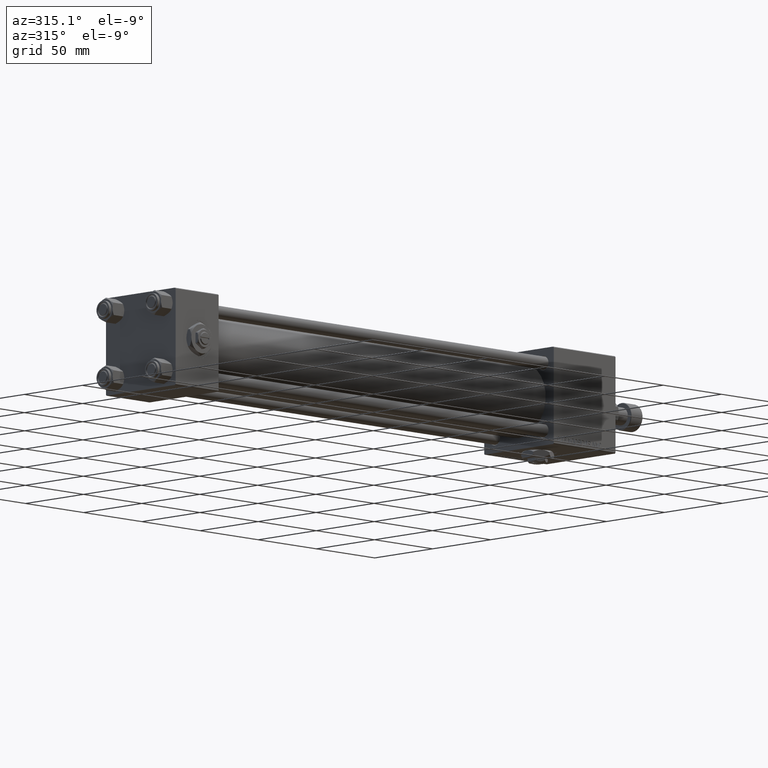
[diagram: clean part render]
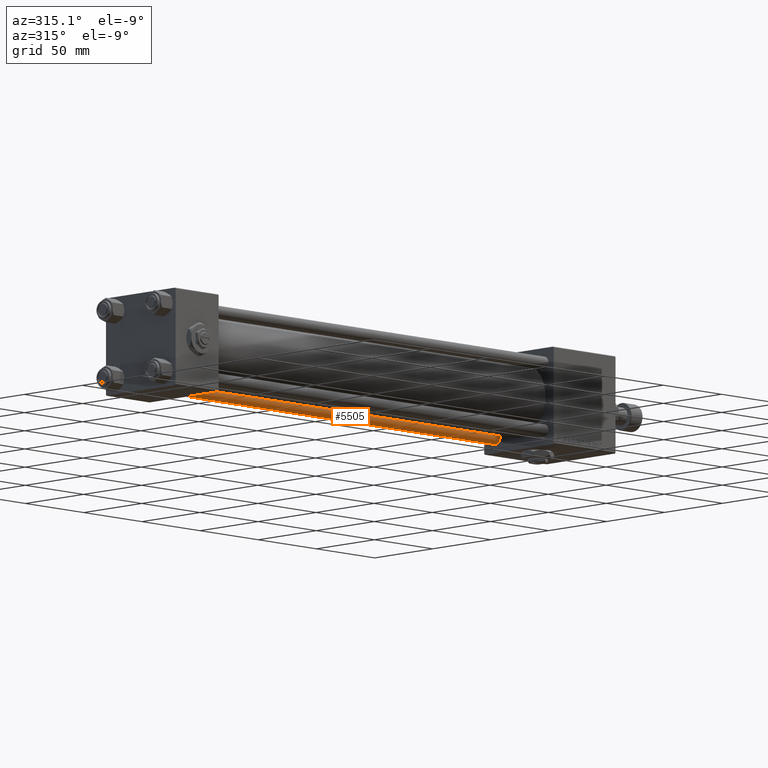
[diagram: same view with one face highlighted and labeled with its STEP entity id]
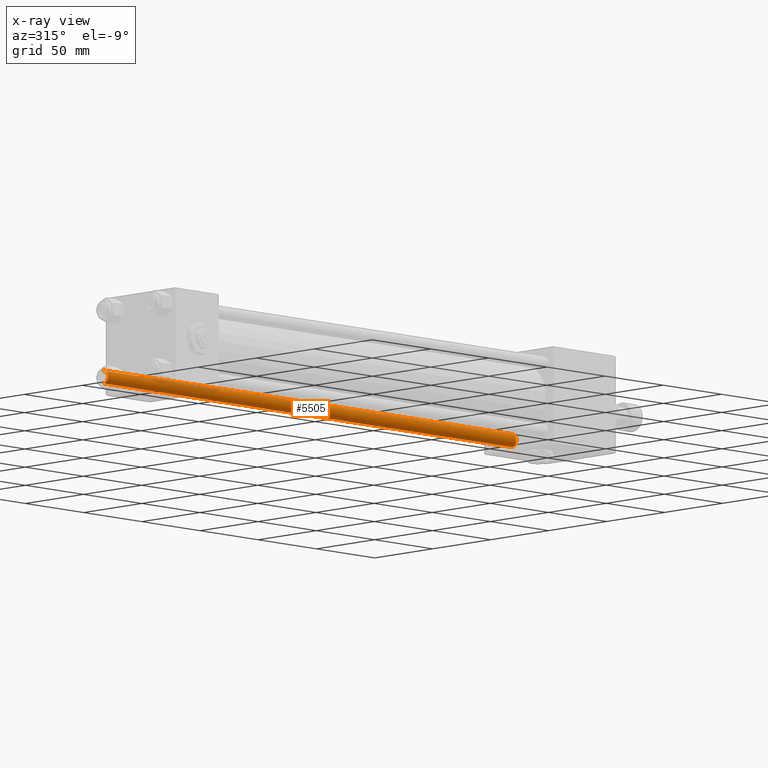
[diagram: x-ray of the same camera — body ghosted, the highlighted face saturated]
A machine part, auxiliary view. The second image highlights one B-rep face of the part: STEP entity #5505.
The next image is the same camera in x-ray: the body ghosted, the highlighted face saturated — about 8% of this face is hidden behind the body in this view.
In plain terms, the highlighted cylindrical surface (edge-blend (fillet) strip) has radius 4 mm, axis along (1, -0, 0).
Its self-contained STEP definition (entity closure, byte-faithful):
#1207 = EDGE_CURVE ( 'NONE', #13906, #46487, #33868, .T. ) ;
#2359 = DIRECTION ( 'NONE',  ( -0.000000000000000000, -0.000000000000000000, 1.000000000000000000 ) ) ;
#3161 = ORIENTED_EDGE ( 'NONE', *, *, #26228, .T. ) ;
#4411 = DIRECTION ( 'NONE',  ( -0.000000000000000000, -0.000000000000000000, -1.000000000000000000 ) ) ;
#5278 = VERTEX_POINT ( 'NONE', #44423 ) ;
#5505 = ADVANCED_FACE ( 'NONE', ( #20498 ), #21033, .T. ) ;
#5931 = EDGE_CURVE ( 'NONE', #18452, #46487, #13184, .T. ) ;
#6224 = CIRCLE ( 'NONE', #40161, 4.000000000000000000 ) ;
#7365 = ORIENTED_EDGE ( 'NONE', *, *, #1207, .T. ) ;
#8524 = DIRECTION ( 'NONE',  ( -1.000000000000000000, 0.000000000000000000, 0.000000000000000000 ) ) ;
#9295 = AXIS2_PLACEMENT_3D ( 'NONE', #29274, #29534, #8524 ) ;
#10088 = CARTESIAN_POINT ( 'NONE',  ( -4.000000000000000000, 0.000000000000000000, 352.0000000000000000 ) ) ;
#11470 = DIRECTION ( 'NONE',  ( 0.000000000000000000, 0.000000000000000000, -1.000000000000000000 ) ) ;
#13184 = LINE ( 'NONE', #45364, #21191 ) ;
#13906 = VERTEX_POINT ( 'NONE', #15378 ) ;
#14748 = ORIENTED_EDGE ( 'NONE', *, *, #48186, .T. ) ;
#15378 = CARTESIAN_POINT ( 'NONE',  ( -4.000000000000000000, 0.000000000000000000, 0.5000000000000004441 ) ) ;
#17766 = ORIENTED_EDGE ( 'NONE', *, *, #5931, .F. ) ;
#18064 = DIRECTION ( 'NONE',  ( 1.000000000000000000, 0.000000000000000000, 0.000000000000000000 ) ) ;
#18452 = VERTEX_POINT ( 'NONE', #18695 ) ;
#18695 = CARTESIAN_POINT ( 'NONE',  ( 4.000000000000000000, 4.898587196589412829E-16, 351.5000000000000000 ) ) ;
#20498 = FACE_OUTER_BOUND ( 'NONE', #49493, .T. ) ;
#21033 = CYLINDRICAL_SURFACE ( 'NONE', #9295, 4.000000000000000000 ) ;
#21191 = VECTOR ( 'NONE', #4411, 1000.000000000000000 ) ;
#26228 = EDGE_CURVE ( 'NONE', #18452, #5278, #6224, .T. ) ;
#27442 = CARTESIAN_POINT ( 'NONE',  ( 0.000000000000000000, 0.000000000000000000, 351.5000000000000000 ) ) ;
#29274 = CARTESIAN_POINT ( 'NONE',  ( 0.000000000000000000, 0.000000000000000000, 352.0000000000000000 ) ) ;
#29534 = DIRECTION ( 'NONE',  ( -0.000000000000000000, -0.000000000000000000, -1.000000000000000000 ) ) ;
#30306 = LINE ( 'NONE', #10088, #51316 ) ;
#33868 = CIRCLE ( 'NONE', #38078, 4.000000000000000000 ) ;
#34029 = DIRECTION ( 'NONE',  ( -0.000000000000000000, -0.000000000000000000, -1.000000000000000000 ) ) ;
#36467 = DIRECTION ( 'NONE',  ( 1.000000000000000000, 0.000000000000000000, 0.000000000000000000 ) ) ;
#38078 = AXIS2_PLACEMENT_3D ( 'NONE', #39291, #2359, #18064 ) ;
#39291 = CARTESIAN_POINT ( 'NONE',  ( 0.000000000000000000, 0.000000000000000000, 0.5000000000000004441 ) ) ;
#40161 = AXIS2_PLACEMENT_3D ( 'NONE', #27442, #11470, #36467 ) ;
#44423 = CARTESIAN_POINT ( 'NONE',  ( -4.000000000000000000, 0.000000000000000000, 351.5000000000000000 ) ) ;
#45364 = CARTESIAN_POINT ( 'NONE',  ( 4.000000000000000000, 4.898587196589412829E-16, 352.0000000000000000 ) ) ;
#46487 = VERTEX_POINT ( 'NONE', #48164 ) ;
#48164 = CARTESIAN_POINT ( 'NONE',  ( 4.000000000000000000, 4.898587196589412829E-16, 0.5000000000000004441 ) ) ;
#48186 = EDGE_CURVE ( 'NONE', #5278, #13906, #30306, .T. ) ;
#49493 = EDGE_LOOP ( 'NONE', ( #17766, #3161, #14748, #7365 ) ) ;
#51316 = VECTOR ( 'NONE', #34029, 1000.000000000000000 ) ;